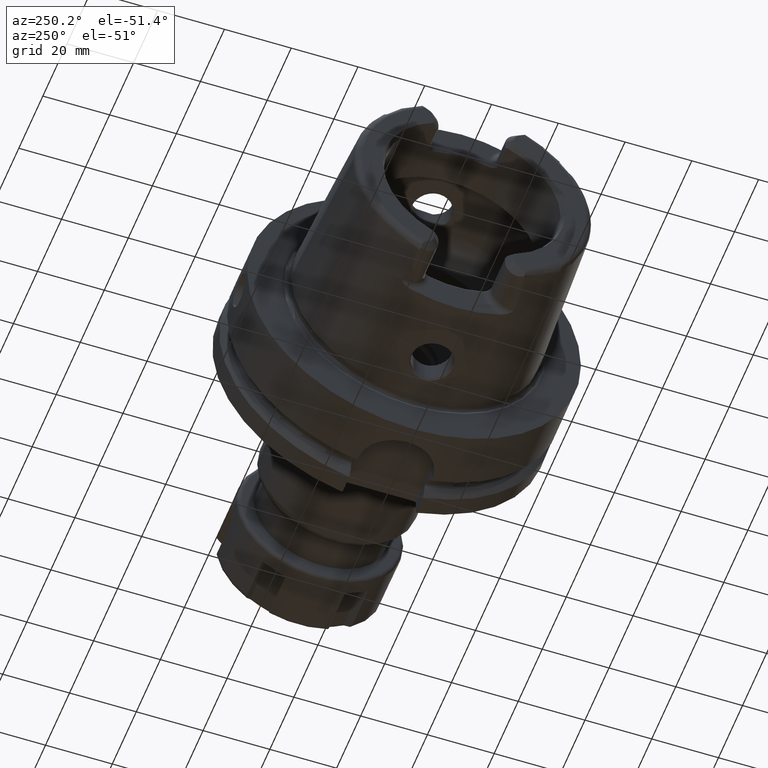
[diagram: clean part render]
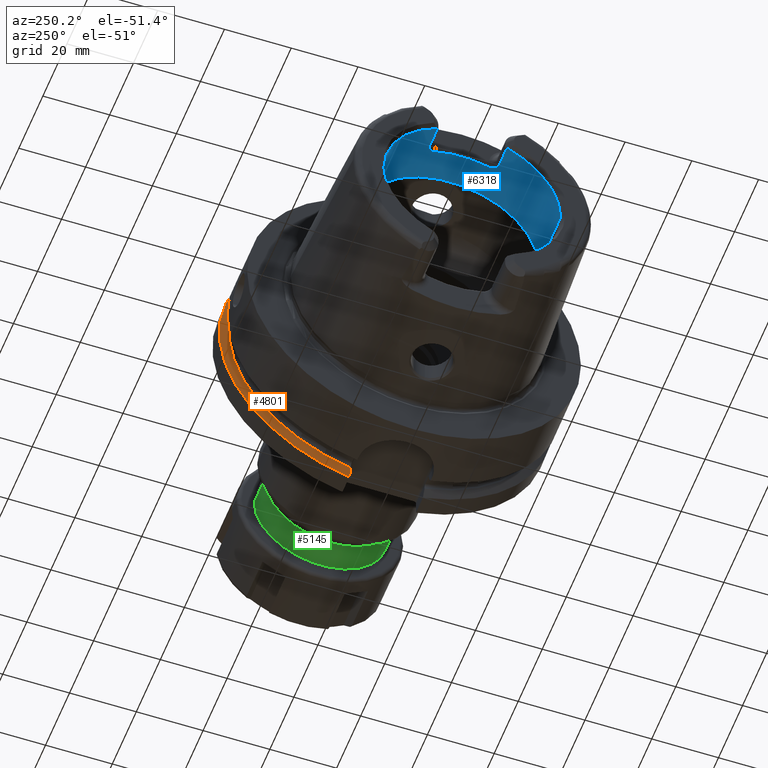
[diagram: same view with three faces highlighted in distinct colors, each labeled with its STEP entity id]
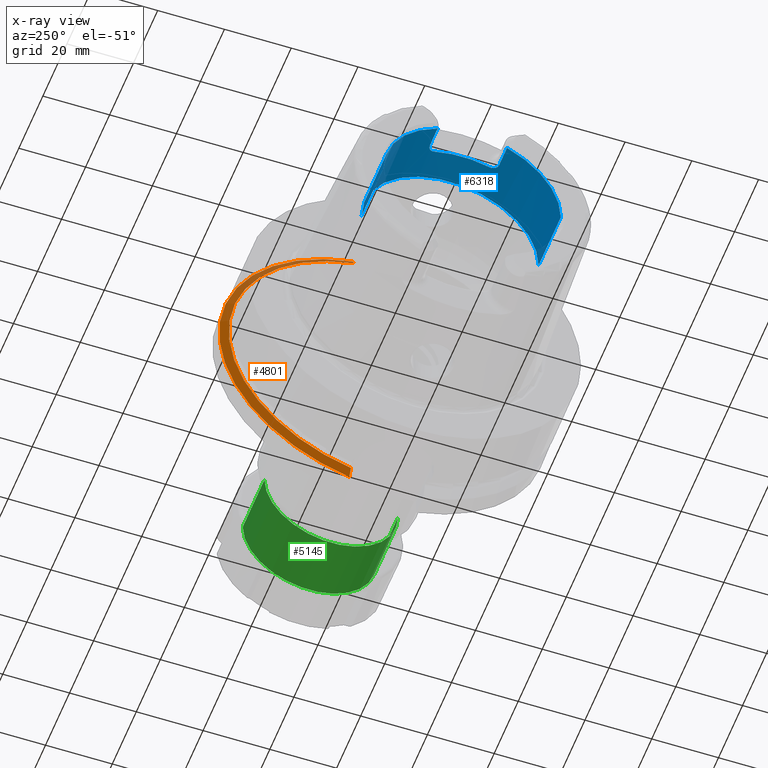
[diagram: x-ray of the same camera — body ghosted, the three highlighted faces saturated]
A machine part, auxiliary view with three faces highlighted in distinct colors.
The next image is the same camera in x-ray (body ghosted, the three faces saturated) — at least one of them is partly hidden behind the body in this view.
Their STEP definitions:

[orange] entity #4801 — the highlighted conical surface has half-angle 60 deg.
#1627=CARTESIAN_POINT('',(2.324759526419E1,1.1021E1,-4.877025280845E1));
#1628=CARTESIAN_POINT('',(2.309075135062E1,1.1021E1,-4.849174120402E1));
#1629=CARTESIAN_POINT('',(2.277995385442E1,1.1021E1,-4.793961855272E1));
#1630=CARTESIAN_POINT('',(2.232250445742E1,1.1021E1,-4.712627442741E1));
#1631=CARTESIAN_POINT('',(2.202321382636E1,1.1021E1,-4.659366407718E1));
#1632=CARTESIAN_POINT('',(2.1875E1,1.1021E1,-4.632978673270E1));
#1634=CARTESIAN_POINT('',(2.324759526419E1,0.E0,0.E0));
#1635=DIRECTION('',(1.E0,0.E0,0.E0));
#1636=DIRECTION('',(0.E0,2.2042E-1,-9.754050561690E-1));
#1637=AXIS2_PLACEMENT_3D('',#1634,#1635,#1636);
#1639=CARTESIAN_POINT('',(2.1875E1,1.0021E1,4.655632222048E1));
#1640=CARTESIAN_POINT('',(2.202341002451E1,1.0021E1,4.681926318888E1));
#1641=CARTESIAN_POINT('',(2.232296264525E1,1.0021E1,4.734978916905E1));
#1642=CARTESIAN_POINT('',(2.278042159889E1,1.0021E1,4.815938834524E1));
#1643=CARTESIAN_POINT('',(2.309095197037E1,1.0021E1,4.870857046335E1));
#1644=CARTESIAN_POINT('',(2.324759526419E1,1.0021E1,4.898550355973E1));
#1646=CARTESIAN_POINT('',(2.1875E1,0.E0,0.E0));
#1647=DIRECTION('',(-1.E0,0.E0,0.E0));
#1648=DIRECTION('',(0.E0,2.104253231981E-1,9.776099341542E-1));
#1649=AXIS2_PLACEMENT_3D('',#1646,#1647,#1648);
#3052=CARTESIAN_POINT('',(2.1875E1,1.0021E1,4.655632222048E1));
#3053=VERTEX_POINT('',#3052);
#3055=VERTEX_POINT('',#1644);
#3088=CARTESIAN_POINT('',(2.1875E1,1.1021E1,-4.632978673270E1));
#3089=VERTEX_POINT('',#3088);
#3092=VERTEX_POINT('',#1627);
#4789=CARTESIAN_POINT('',(2.256129763210E1,0.E0,0.E0));
#4790=DIRECTION('',(1.E0,0.E0,0.E0));
#4791=DIRECTION('',(0.E0,-1.E0,0.E0));
#4792=AXIS2_PLACEMENT_3D('',#4789,#4790,#4791);
#4793=CONICAL_SURFACE('',#4792,4.881129763210E1,6.E1);
#4794=ORIENTED_EDGE('',*,*,#4379,.F.);
#4795=ORIENTED_EDGE('',*,*,#4313,.T.);
#4797=ORIENTED_EDGE('',*,*,#4796,.F.);
#4798=ORIENTED_EDGE('',*,*,#4752,.T.);
#4799=EDGE_LOOP('',(#4794,#4795,#4797,#4798));
#4800=FACE_OUTER_BOUND('',#4799,.F.);
#4801=ADVANCED_FACE('',(#4800),#4793,.T.);
#1633=B_SPLINE_CURVE_WITH_KNOTS('',3,(#1627,#1628,#1629,#1630,#1631,#1632),
.UNSPECIFIED.,.F.,.F.,(4,1,1,4),(0.E0,3.333333333333E-1,6.666666666667E-1,1.E0),
.UNSPECIFIED.);
#1638=CIRCLE('',#1637,5.E1);
#1645=B_SPLINE_CURVE_WITH_KNOTS('',3,(#1639,#1640,#1641,#1642,#1643,#1644),
.UNSPECIFIED.,.F.,.F.,(4,1,1,4),(0.E0,3.333333333333E-1,6.666666666667E-1,1.E0),
.UNSPECIFIED.);
#1650=CIRCLE('',#1649,4.762259526419E1);
#4313=EDGE_CURVE('',#3092,#3055,#1638,.T.);
#4379=EDGE_CURVE('',#3092,#3089,#1633,.T.);
#4752=EDGE_CURVE('',#3053,#3089,#1650,.T.);
#4796=EDGE_CURVE('',#3053,#3055,#1645,.T.);

[blue] entity #6318 — the highlighted cylindrical surface (partial cylindrical patch) has radius 26.5 mm, axis along (1, 0, 0).
#165=CARTESIAN_POINT('',(-4.85E1,1.051E1,2.432673220965E1));
#167=CARTESIAN_POINT('',(-4.85E1,0.E0,0.E0));
#168=DIRECTION('',(1.E0,0.E0,0.E0));
#169=DIRECTION('',(0.E0,1.E0,0.E0));
#170=AXIS2_PLACEMENT_3D('',#167,#168,#169);
#187=CARTESIAN_POINT('',(-4.85E1,0.E0,0.E0));
#188=DIRECTION('',(1.E0,0.E0,0.E0));
#189=DIRECTION('',(0.E0,-3.966037735849E-1,9.179898947038E-1));
#190=AXIS2_PLACEMENT_3D('',#187,#188,#189);
#192=CARTESIAN_POINT('',(-4.85E1,-1.051E1,2.432673220965E1));
#513=DIRECTION('',(-1.E0,0.E0,0.E0));
#514=VECTOR('',#513,1.849662432703E1);
#515=CARTESIAN_POINT('',(-3.000337567297E1,2.65E1,0.E0));
#516=LINE('',#515,#514);
#522=DIRECTION('',(-1.E0,0.E0,0.E0));
#523=VECTOR('',#522,1.849662432703E1);
#524=CARTESIAN_POINT('',(-3.000337567297E1,-2.65E1,0.E0));
#525=LINE('',#524,#523);
#2542=DIRECTION('',(1.E0,0.E0,0.E0));
#2543=VECTOR('',#2542,6.380229667746E0);
#2544=CARTESIAN_POINT('',(-4.838022966775E1,1.039022966775E1,2.437812805470E1));
#2545=LINE('',#2544,#2543);
#2546=CARTESIAN_POINT('',(-3.971132486541E1,8.01E0,2.526044140549E1));
#2547=CARTESIAN_POINT('',(-3.970878365387E1,8.120563234658E0,2.522538218006E1));
#2548=CARTESIAN_POINT('',(-3.971906599640E1,8.340498761E0,2.515406323082E1));
#2549=CARTESIAN_POINT('',(-3.978267622202E1,8.672586520936E0,2.504149237513E1));
#2550=CARTESIAN_POINT('',(-3.989268945815E1,8.989467647893E0,2.492938353432E1));
#2551=CARTESIAN_POINT('',(-4.004052322956E1,9.277750297847E0,2.482340953473E1));
#2552=CARTESIAN_POINT('',(-4.022199090024E1,9.537479373845E0,2.472468297046E1));
#2553=CARTESIAN_POINT('',(-4.043924040036E1,9.773195748073E0,2.463237051391E1));
#2554=CARTESIAN_POINT('',(-4.069196362011E1,9.980705213938E0,2.454892857931E1));
#2555=CARTESIAN_POINT('',(-4.098453186625E1,1.015759575717E1,2.447617541728E1));
#2556=CARTESIAN_POINT('',(-4.132143240488E1,1.029570459017E1,2.441829554688E1));
#2557=CARTESIAN_POINT('',(-4.167918985613E1,1.037618705973E1,2.438412368561E1));
#2558=CARTESIAN_POINT('',(-4.189481839478E1,1.039022966775E1,2.437812805470E1));
#2559=CARTESIAN_POINT('',(-4.2E1,1.039022966775E1,2.437812805470E1));
#2561=CARTESIAN_POINT('',(-3.971132486541E1,-8.01E0,2.526044140549E1));
#2562=CARTESIAN_POINT('',(-3.971132486541E1,-7.271271578955E0,
2.549468967366E1));
#2563=CARTESIAN_POINT('',(-3.971132486546E1,-5.773250992792E0,
2.589833317849E1));
#2564=CARTESIAN_POINT('',(-3.971132486544E1,-3.481810319461E0,
2.630458298809E1));
#2565=CARTESIAN_POINT('',(-3.971132486544E1,-1.163586982585E0,
2.650849211583E1));
#2566=CARTESIAN_POINT('',(-3.971132486544E1,1.163586982585E0,2.650849211583E1));
#2567=CARTESIAN_POINT('',(-3.971132486544E1,3.481810319461E0,2.630458298809E1));
#2568=CARTESIAN_POINT('',(-3.971132486546E1,5.773250992791E0,2.589833317849E1));
#2569=CARTESIAN_POINT('',(-3.971132486541E1,7.271271578958E0,2.549468967366E1));
#2570=CARTESIAN_POINT('',(-3.971132486541E1,8.01E0,2.526044140549E1));
#2572=CARTESIAN_POINT('',(-4.2E1,-1.039022966775E1,2.437812805470E1));
#2573=CARTESIAN_POINT('',(-4.189375760304E1,-1.039022966775E1,
2.437812805470E1));
#2574=CARTESIAN_POINT('',(-4.167635124759E1,-1.037592175927E1,
2.438423721529E1));
#2575=CARTESIAN_POINT('',(-4.131623052643E1,-1.029415408513E1,
2.441895189414E1));
#2576=CARTESIAN_POINT('',(-4.097947032639E1,-1.015497495082E1,
2.447726388108E1));
#2577=CARTESIAN_POINT('',(-4.068903934051E1,-9.978495762119E0,
2.454982411868E1));
#2578=CARTESIAN_POINT('',(-4.043805179144E1,-9.771970406757E0,
2.463285308238E1));
#2579=CARTESIAN_POINT('',(-4.022178538202E1,-9.537157318169E0,
2.472480442904E1));
#2580=CARTESIAN_POINT('',(-4.004048499348E1,-9.277715471543E0,
2.482342368645E1));
#2581=CARTESIAN_POINT('',(-3.989237648633E1,-8.988811706632E0,
2.492962282131E1));
#2582=CARTESIAN_POINT('',(-3.978230284625E1,-8.671343229942E0,
2.504192722240E1));
#2583=CARTESIAN_POINT('',(-3.971884880625E1,-8.338547582645E0,
2.515470883480E1));
#2584=CARTESIAN_POINT('',(-3.970880260289E1,-8.119738798873E0,
2.522564360584E1));
#2585=CARTESIAN_POINT('',(-3.971132486541E1,-8.01E0,2.526044140549E1));
#2587=DIRECTION('',(1.E0,0.E0,0.E0));
#2588=VECTOR('',#2587,6.380229667746E0);
#2589=CARTESIAN_POINT('',(-4.838022966775E1,-1.039022966775E1,
2.437812805470E1));
#2590=LINE('',#2589,#2588);
#2591=CARTESIAN_POINT('',(-4.838022966775E1,-1.039022966775E1,
2.437812805470E1));
#2592=CARTESIAN_POINT('',(-4.842017594144E1,-1.043017594144E1,
2.436110250799E1));
#2593=CARTESIAN_POINT('',(-4.846009940760E1,-1.047009940760E1,
2.434397066250E1));
#2594=CARTESIAN_POINT('',(-4.85E1,-1.051E1,2.432673220965E1));
#2596=CARTESIAN_POINT('',(-3.000337567297E1,0.E0,0.E0));
#2597=DIRECTION('',(1.E0,0.E0,0.E0));
#2598=DIRECTION('',(0.E0,1.E0,0.E0));
#2599=AXIS2_PLACEMENT_3D('',#2596,#2597,#2598);
#2601=CARTESIAN_POINT('',(-4.85E1,1.051E1,2.432673220965E1));
#2602=CARTESIAN_POINT('',(-4.846009940760E1,1.047009940760E1,2.434397066250E1));
#2603=CARTESIAN_POINT('',(-4.842017594144E1,1.043017594144E1,2.436110250799E1));
#2604=CARTESIAN_POINT('',(-4.838022966775E1,1.039022966775E1,2.437812805470E1));
#2807=CARTESIAN_POINT('',(-3.000337567297E1,2.65E1,0.E0));
#2808=VERTEX_POINT('',#2807);
#2809=CARTESIAN_POINT('',(-4.85E1,2.65E1,0.E0));
#2810=VERTEX_POINT('',#2809);
#2819=CARTESIAN_POINT('',(-3.000337567297E1,-2.65E1,0.E0));
#2820=VERTEX_POINT('',#2819);
#2821=CARTESIAN_POINT('',(-4.85E1,-2.65E1,0.E0));
#2822=VERTEX_POINT('',#2821);
#2863=VERTEX_POINT('',#165);
#2878=VERTEX_POINT('',#192);
#2891=CARTESIAN_POINT('',(-4.2E1,1.039022966775E1,2.437812805470E1));
#2892=VERTEX_POINT('',#2891);
#2893=CARTESIAN_POINT('',(-3.971132486541E1,8.01E0,2.526044140549E1));
#2894=VERTEX_POINT('',#2893);
#2895=CARTESIAN_POINT('',(-4.2E1,-1.039022966775E1,2.437812805470E1));
#2896=VERTEX_POINT('',#2895);
#2897=CARTESIAN_POINT('',(-3.971132486541E1,-8.01E0,2.526044140549E1));
#2898=VERTEX_POINT('',#2897);
#2899=CARTESIAN_POINT('',(-4.838022966775E1,1.039022966775E1,2.437812805470E1));
#2900=VERTEX_POINT('',#2899);
#2901=CARTESIAN_POINT('',(-4.838022966775E1,-1.039022966775E1,
2.437812805470E1));
#2902=VERTEX_POINT('',#2901);
#6294=CARTESIAN_POINT('',(-5.3125E1,0.E0,0.E0));
#6295=DIRECTION('',(1.E0,0.E0,0.E0));
#6296=DIRECTION('',(0.E0,-1.E0,0.E0));
#6297=AXIS2_PLACEMENT_3D('',#6294,#6295,#6296);
#6298=CYLINDRICAL_SURFACE('',#6297,2.65E1);
#6299=ORIENTED_EDGE('',*,*,#3426,.T.);
#6301=ORIENTED_EDGE('',*,*,#6300,.F.);
#6303=ORIENTED_EDGE('',*,*,#6302,.F.);
#6305=ORIENTED_EDGE('',*,*,#6304,.F.);
#6307=ORIENTED_EDGE('',*,*,#6306,.F.);
#6309=ORIENTED_EDGE('',*,*,#6308,.T.);
#6310=ORIENTED_EDGE('',*,*,#3391,.T.);
#6311=ORIENTED_EDGE('',*,*,#3653,.F.);
#6312=ORIENTED_EDGE('',*,*,#6274,.F.);
#6313=ORIENTED_EDGE('',*,*,#3649,.T.);
#6314=ORIENTED_EDGE('',*,*,#3375,.T.);
#6315=ORIENTED_EDGE('',*,*,#3406,.T.);
#6316=EDGE_LOOP('',(#6299,#6301,#6303,#6305,#6307,#6309,#6310,#6311,#6312,#6313,
#6314,#6315));
#6317=FACE_OUTER_BOUND('',#6316,.F.);
#6318=ADVANCED_FACE('',(#6317),#6298,.F.);
#171=CIRCLE('',#170,2.65E1);
#191=CIRCLE('',#190,2.65E1);
#2560=B_SPLINE_CURVE_WITH_KNOTS('',3,(#2546,#2547,#2548,#2549,#2550,#2551,#2552,
#2553,#2554,#2555,#2556,#2557,#2558,#2559),.UNSPECIFIED.,.F.,.F.,(4,1,1,1,1,1,1,
1,1,1,1,4),(0.E0,9.090909090909E-2,1.818181818182E-1,2.727272727273E-1,
3.636363636364E-1,4.545454545455E-1,5.454545454545E-1,6.363636363636E-1,
7.272727272727E-1,8.181818181818E-1,9.090909090909E-1,1.E0),.UNSPECIFIED.);
#2571=B_SPLINE_CURVE_WITH_KNOTS('',3,(#2561,#2562,#2563,#2564,#2565,#2566,#2567,
#2568,#2569,#2570),.UNSPECIFIED.,.F.,.F.,(4,1,1,1,1,1,1,4),(0.E0,
1.428571428571E-1,2.857142857143E-1,4.285714285714E-1,5.714285714286E-1,
7.142857142857E-1,8.571428571429E-1,1.E0),.UNSPECIFIED.);
#2586=B_SPLINE_CURVE_WITH_KNOTS('',3,(#2572,#2573,#2574,#2575,#2576,#2577,#2578,
#2579,#2580,#2581,#2582,#2583,#2584,#2585),.UNSPECIFIED.,.F.,.F.,(4,1,1,1,1,1,1,
1,1,1,1,4),(0.E0,9.090909090909E-2,1.818181818182E-1,2.727272727273E-1,
3.636363636364E-1,4.545454545455E-1,5.454545454545E-1,6.363636363636E-1,
7.272727272727E-1,8.181818181818E-1,9.090909090909E-1,1.E0),.UNSPECIFIED.);
#2595=B_SPLINE_CURVE_WITH_KNOTS('',3,(#2591,#2592,#2593,#2594),.UNSPECIFIED.,
.F.,.F.,(4,4),(0.E0,1.E0),.UNSPECIFIED.);
#2600=CIRCLE('',#2599,2.65E1);
#2605=B_SPLINE_CURVE_WITH_KNOTS('',3,(#2601,#2602,#2603,#2604),.UNSPECIFIED.,
.F.,.F.,(4,4),(0.E0,1.E0),.UNSPECIFIED.);
#3375=EDGE_CURVE('',#2810,#2863,#171,.T.);
#3391=EDGE_CURVE('',#2878,#2822,#191,.T.);
#3406=EDGE_CURVE('',#2863,#2900,#2605,.T.);
#3426=EDGE_CURVE('',#2900,#2892,#2545,.T.);
#3649=EDGE_CURVE('',#2808,#2810,#516,.T.);
#3653=EDGE_CURVE('',#2820,#2822,#525,.T.);
#6274=EDGE_CURVE('',#2808,#2820,#2600,.T.);
#6300=EDGE_CURVE('',#2894,#2892,#2560,.T.);
#6302=EDGE_CURVE('',#2898,#2894,#2571,.T.);
#6304=EDGE_CURVE('',#2896,#2898,#2586,.T.);
#6306=EDGE_CURVE('',#2902,#2896,#2590,.T.);
#6308=EDGE_CURVE('',#2902,#2878,#2595,.T.);

[green] entity #5145 — the highlighted cylindrical surface (partial cylindrical patch) has radius 20 mm, axis along (1, 0, 0).
#1868=CARTESIAN_POINT('',(6.891421356237E1,0.E0,0.E0));
#1869=DIRECTION('',(1.E0,0.E0,0.E0));
#1870=DIRECTION('',(0.E0,-1.E0,0.E0));
#1871=AXIS2_PLACEMENT_3D('',#1868,#1869,#1870);
#1873=DIRECTION('',(-1.E0,0.E0,0.E0));
#1874=VECTOR('',#1873,1.808578643763E1);
#1875=CARTESIAN_POINT('',(8.7E1,-2.E1,0.E0));
#1876=LINE('',#1875,#1874);
#1877=CARTESIAN_POINT('',(8.7E1,0.E0,0.E0));
#1878=DIRECTION('',(-1.E0,0.E0,0.E0));
#1879=DIRECTION('',(0.E0,1.E0,0.E0));
#1880=AXIS2_PLACEMENT_3D('',#1877,#1878,#1879);
#1882=DIRECTION('',(-1.E0,0.E0,0.E0));
#1883=VECTOR('',#1882,1.808578643763E1);
#1884=CARTESIAN_POINT('',(8.7E1,2.E1,0.E0));
#1885=LINE('',#1884,#1883);
#3196=CARTESIAN_POINT('',(8.7E1,2.E1,0.E0));
#3197=CARTESIAN_POINT('',(8.7E1,-2.E1,0.E0));
#3198=VERTEX_POINT('',#3196);
#3199=VERTEX_POINT('',#3197);
#3212=CARTESIAN_POINT('',(6.891421356237E1,-2.E1,0.E0));
#3213=CARTESIAN_POINT('',(6.891421356237E1,2.E1,0.E0));
#3214=VERTEX_POINT('',#3212);
#3215=VERTEX_POINT('',#3213);
#5131=CARTESIAN_POINT('',(2.61E1,0.E0,0.E0));
#5132=DIRECTION('',(1.E0,0.E0,0.E0));
#5133=DIRECTION('',(0.E0,-1.E0,0.E0));
#5134=AXIS2_PLACEMENT_3D('',#5131,#5132,#5133);
#5135=CYLINDRICAL_SURFACE('',#5134,2.E1);
#5136=ORIENTED_EDGE('',*,*,#5125,.F.);
#5138=ORIENTED_EDGE('',*,*,#5137,.F.);
#5140=ORIENTED_EDGE('',*,*,#5139,.F.);
#5142=ORIENTED_EDGE('',*,*,#5141,.T.);
#5143=EDGE_LOOP('',(#5136,#5138,#5140,#5142));
#5144=FACE_OUTER_BOUND('',#5143,.F.);
#5145=ADVANCED_FACE('',(#5144),#5135,.T.);
#1872=CIRCLE('',#1871,2.E1);
#1881=CIRCLE('',#1880,2.E1);
#5125=EDGE_CURVE('',#3214,#3215,#1872,.T.);
#5137=EDGE_CURVE('',#3199,#3214,#1876,.T.);
#5139=EDGE_CURVE('',#3198,#3199,#1881,.T.);
#5141=EDGE_CURVE('',#3198,#3215,#1885,.T.);